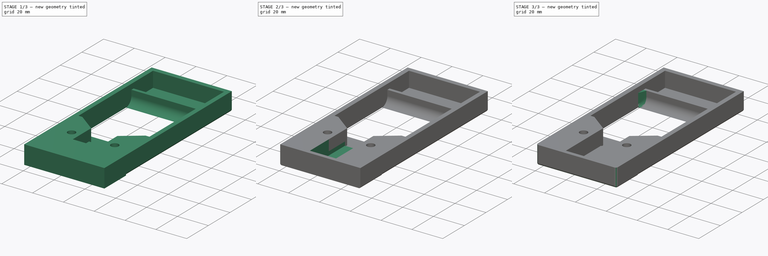
[diagram: build sequence overview — one tinted view per stage of 3, left to right]
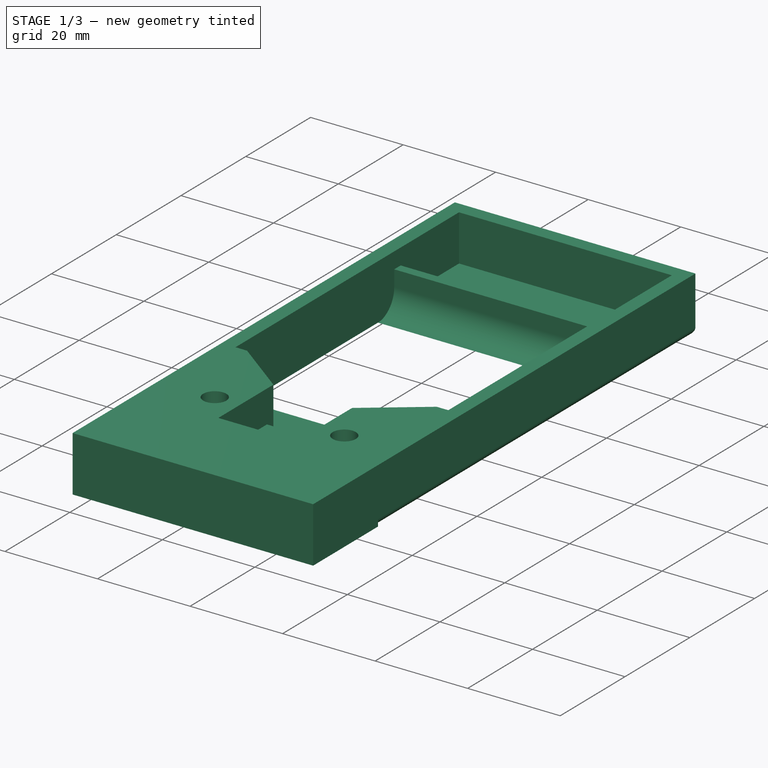
[diagram: stage 1 of 3 — iso view after this stage's code; geometry added in this stage tinted green]
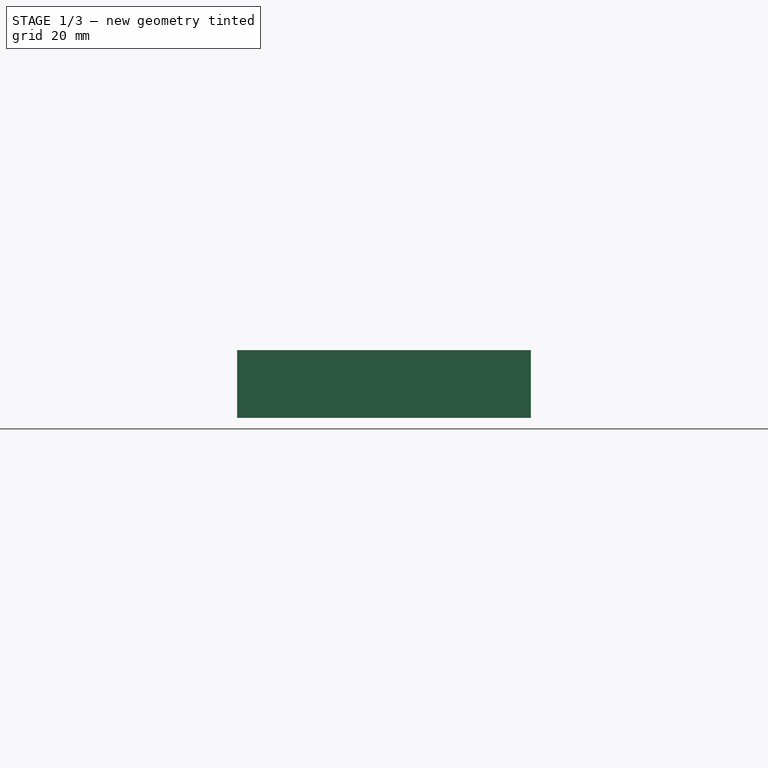
[diagram: stage 1 of 3 — front view after this stage's code; geometry added in this stage tinted green]
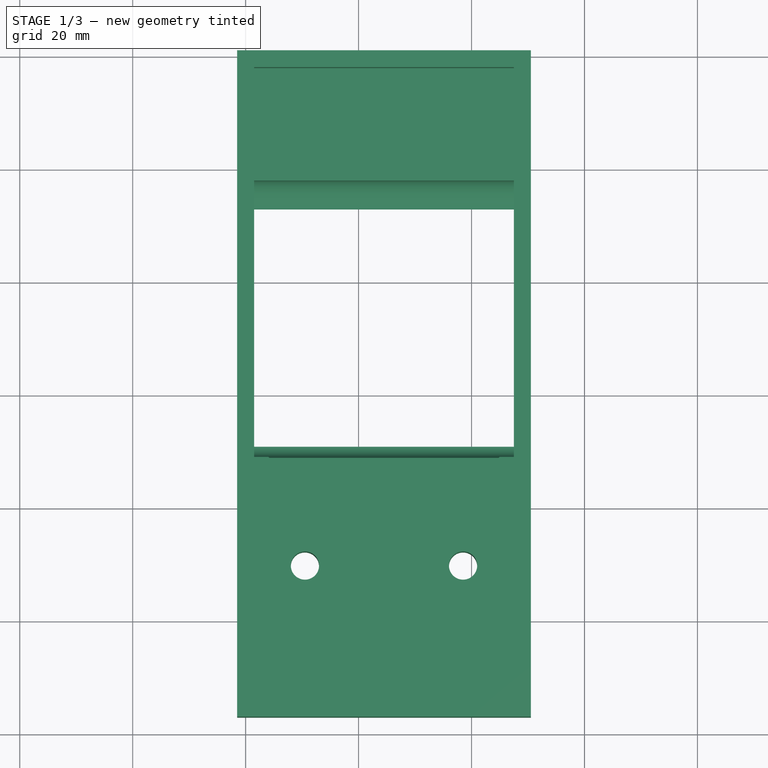
[diagram: stage 1 of 3 — top view after this stage's code; geometry added in this stage tinted green]
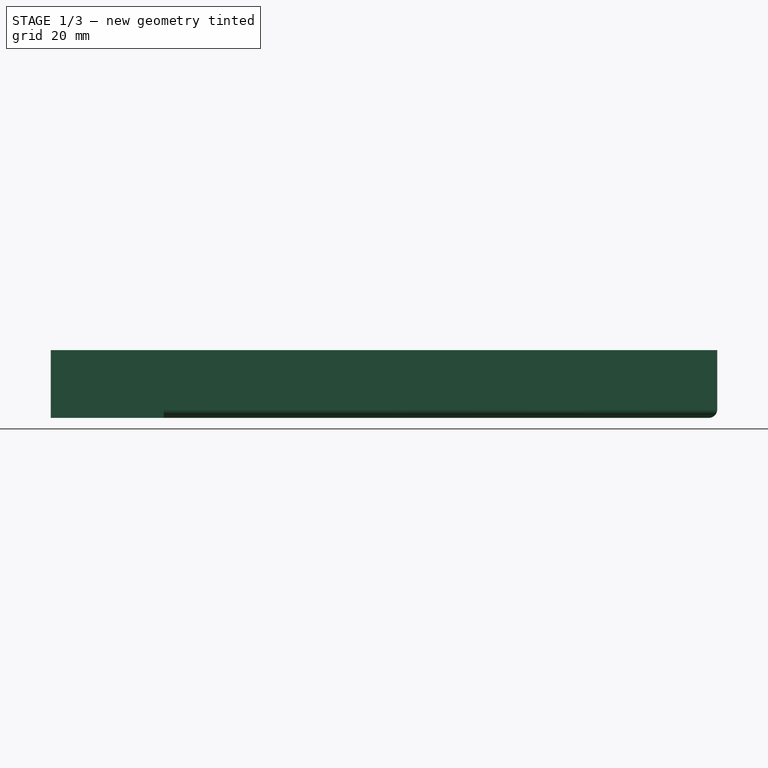
[diagram: stage 1 of 3 — right view after this stage's code; geometry added in this stage tinted green]
FCSTD DOCUMENT  (FreeCAD 0.16R6707 (Git))
Label: rq_optskin01_mold_a
License: All rights reserved
LicenseURL: http://en.wikipedia.org/wiki/All_rights_reserved
objects: Part::Feature×5, Sketcher::SketchObject×2, Part::Fillet×2, Part::Extrusion×1, Part::MultiFuse×1, PartDesign::Pocket×1, Part::Compound×1
note: 14 computed .brp shape members not serialized (recipe doc carries the construction recipe); baked Part::Feature solids carry a one-line shape summary decoded from their .brp

FEATURE [Sketcher::SketchObject] Sketch016
  Placement = pos=(0,0,12) rot=(0,0,1;0rad)
  sketch-geometry (4):
    g0: LineSegment StartX=-21.5 StartY=-17 StartZ=0 EndX=30.5 EndY=-17 EndZ=0
    g1: LineSegment StartX=30.5 StartY=-17 StartZ=0 EndX=30.5 EndY=-37 EndZ=0
    g2: LineSegment StartX=30.5 StartY=-37 StartZ=0 EndX=-21.5 EndY=-37 EndZ=0
    g3: LineSegment StartX=-21.5 StartY=-37 StartZ=0 EndX=-21.5 EndY=-17 EndZ=0
  constraints (8):
    c: Coincident(g0,g1)
    c: Coincident(g1,g2)
    c: Coincident(g2,g3)
    c: Coincident(g3,g0)
    c: Horizontal(g0)
    c: Horizontal(g2)
    c: Vertical(g1)
    c: Vertical(g3)
FEATURE [Part::Extrusion] Extrude003
  Base = -> Sketch016
  Dir = (0,0,-12)
  Solid = true
FEATURE [Part::Feature] bxgr_optskin02_mold_a_v3_1
  shape: bbox 52 x 102 x 12 mm, 45 faces (baked)
FEATURE [Part::Feature] bxgr_optskin02_mold_a_v3_1001
  Placement = pos=(-16.55,53,0) rot=(0,0,1;0rad)
  shape: bbox 2.01 x 5 x 8.5 mm, 8 faces (baked)
FEATURE [Part::Feature] bxgr_optskin02_mold_a_v3_1002
  Placement = pos=(25.5,53,0) rot=(0,0,1;0rad)
  shape: bbox 2.01 x 5 x 8.5 mm, 8 faces (baked)
FEATURE [Part::Feature] bxgr_optskin02_mold_a_v3_1003
  shape: bbox 2 x 46 x 2 mm, 3 faces, 0 solids (baked)
FEATURE [Part::Feature] bxgr_optskin02_mold_a_v3_1004
  shape: bbox 2 x 46 x 2 mm, 3 faces, 0 solids (baked)
FEATURE [Part::MultiFuse] Fusion
  Shapes = -> [bxgr_optskin02_mold_a_v3_1,Extrude003]
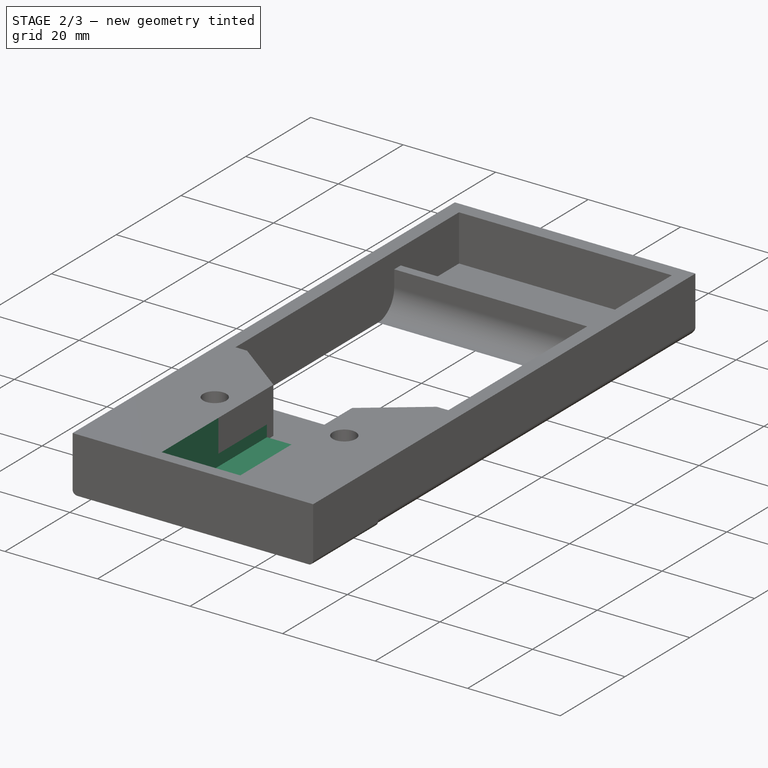
[diagram: stage 2 of 3 — iso view after this stage's code; geometry added in this stage tinted green]
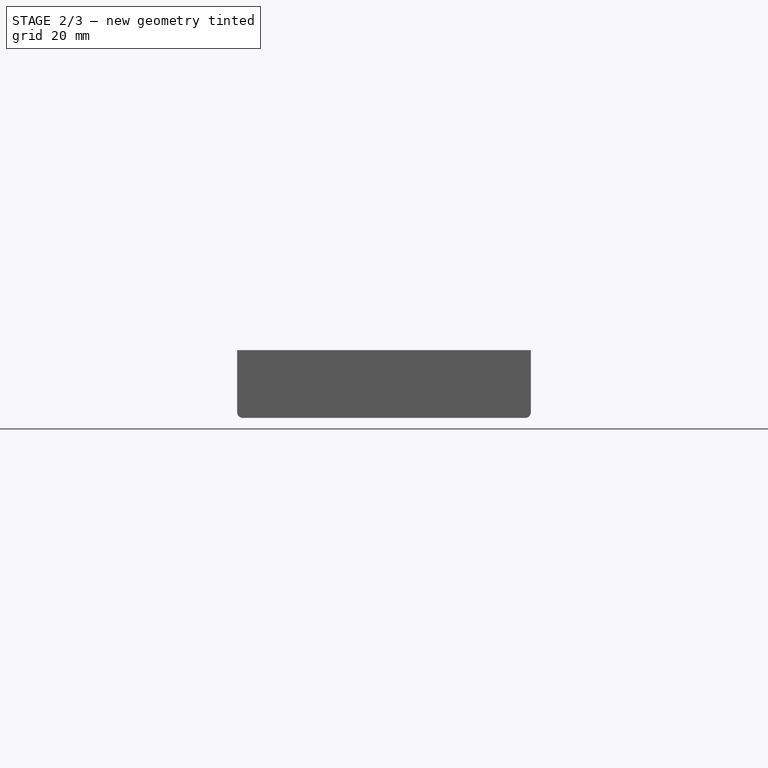
[diagram: stage 2 of 3 — front view after this stage's code; geometry added in this stage tinted green]
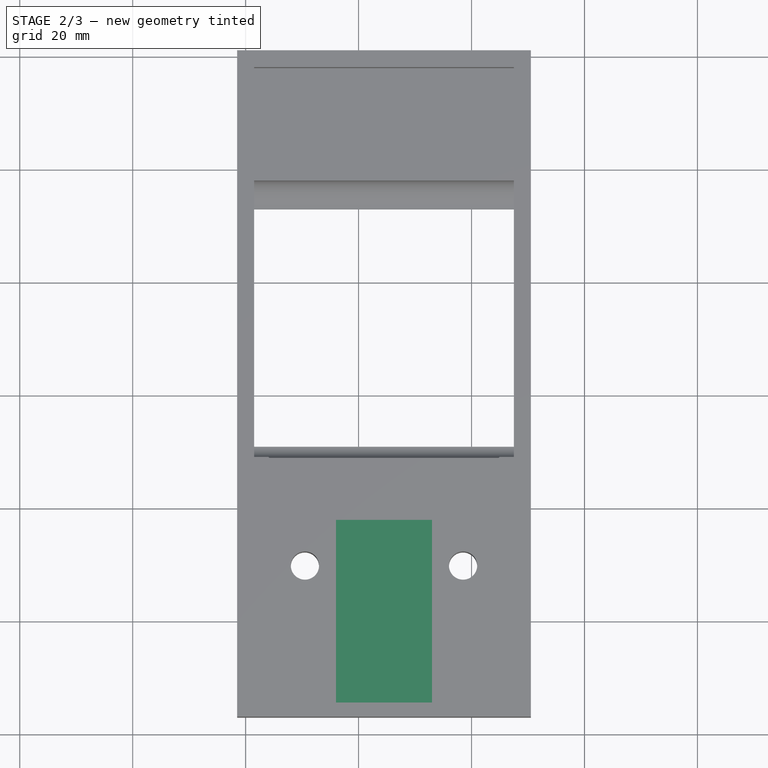
[diagram: stage 2 of 3 — top view after this stage's code; geometry added in this stage tinted green]
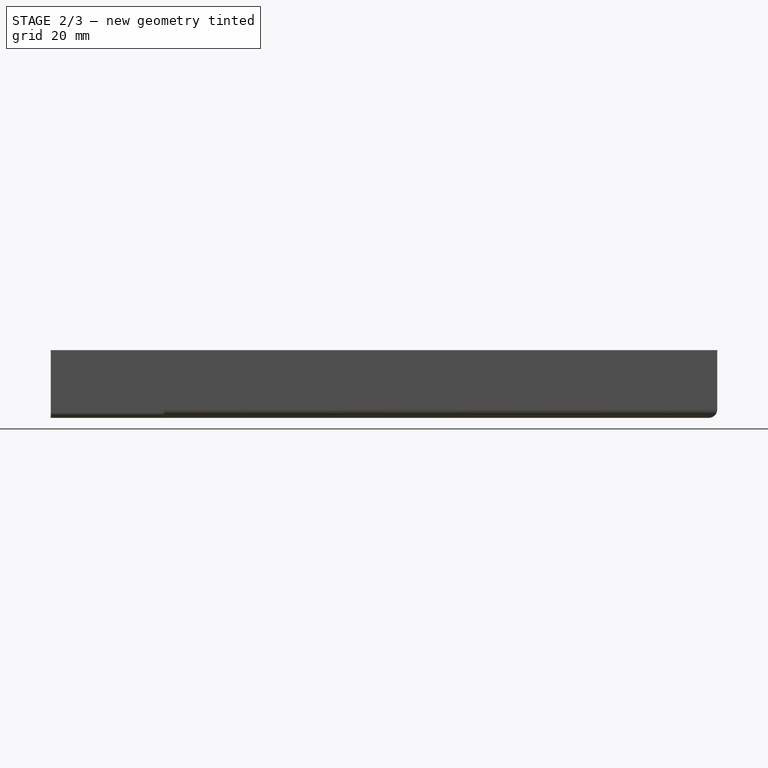
[diagram: stage 2 of 3 — right view after this stage's code; geometry added in this stage tinted green]
FEATURE [Sketcher::SketchObject] Sketch
  ExternalGeometry = -> [Fusion]
  Placement = pos=(0,0,12) rot=(0,0,1;0rad)
  Support = -> Fusion [Face34]
  sketch-geometry (4):
    g0: LineSegment StartX=-4 StartY=-2 StartZ=0 EndX=13 EndY=-2 EndZ=0
    g1: LineSegment StartX=13 StartY=-2 StartZ=0 EndX=13 EndY=-34.5 EndZ=0
    g2: LineSegment StartX=13 StartY=-34.5 StartZ=0 EndX=-4 EndY=-34.5 EndZ=0
    g3: LineSegment StartX=-4 StartY=-34.5 StartZ=0 EndX=-4 EndY=-2 EndZ=0
  constraints (11):
    c: Coincident(g0,g1)
    c: Coincident(g1,g2)
    c: Coincident(g2,g3)
    c: Coincident(g3,g0)
    c: Horizontal(g0)
    c: Horizontal(g2)
    c: Vertical(g1)
    c: Vertical(g3)
    c: Coincident(g0,g-3)
    c: Coincident(g0,g-3)
    c: DistanceY(g2,g0) = 32.5
FEATURE [PartDesign::Pocket] Pocket
  Length = 9.5
  Sketch = -> Sketch
  Type = 0
FEATURE [Part::Fillet] Fillet
  Base = -> Pocket
  Edges = 2 edges r=1: [Edge110,Edge138]
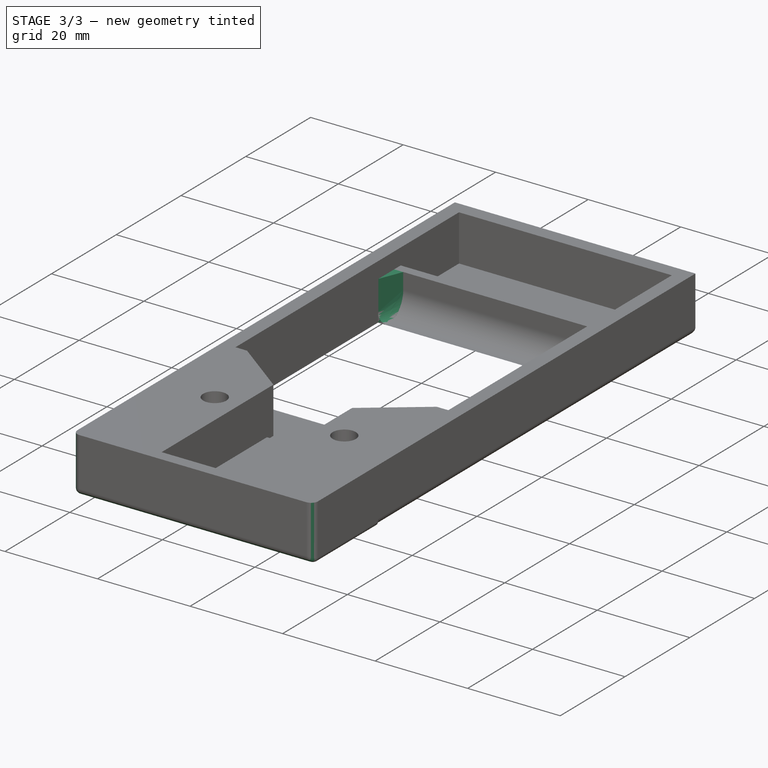
[diagram: stage 3 of 3 — iso view after this stage's code; geometry added in this stage tinted green]
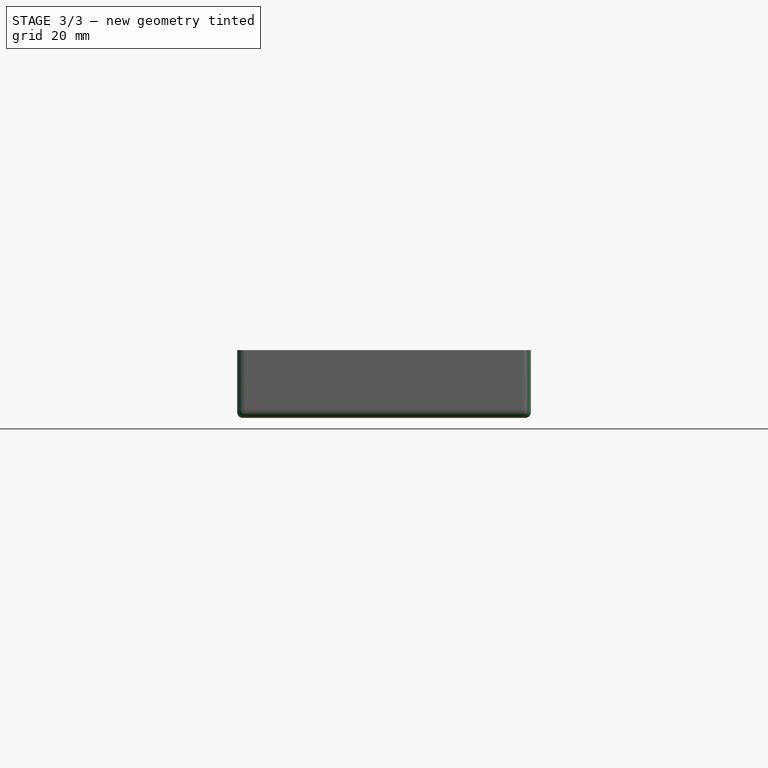
[diagram: stage 3 of 3 — front view after this stage's code; geometry added in this stage tinted green]
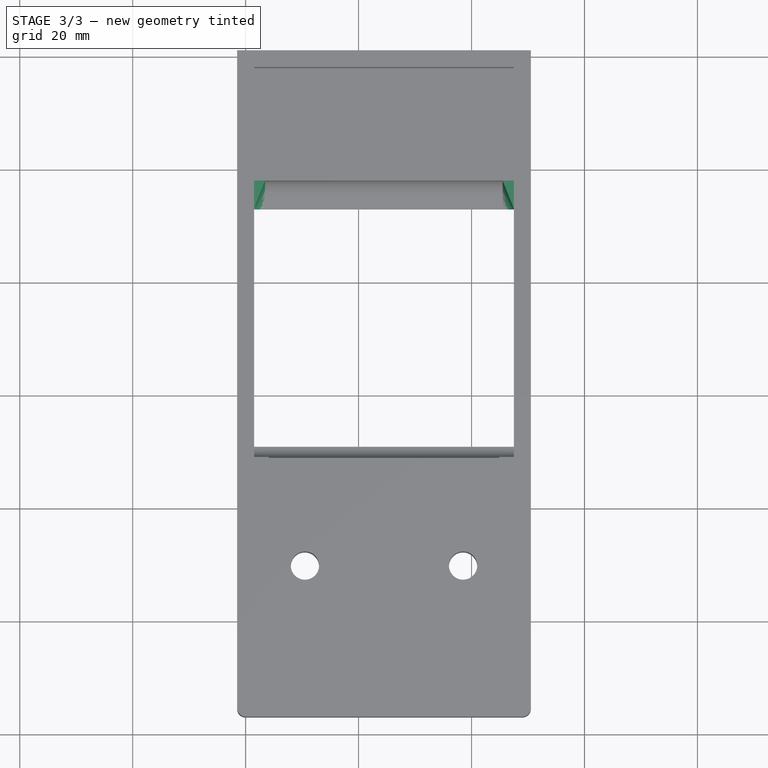
[diagram: stage 3 of 3 — top view after this stage's code; geometry added in this stage tinted green]
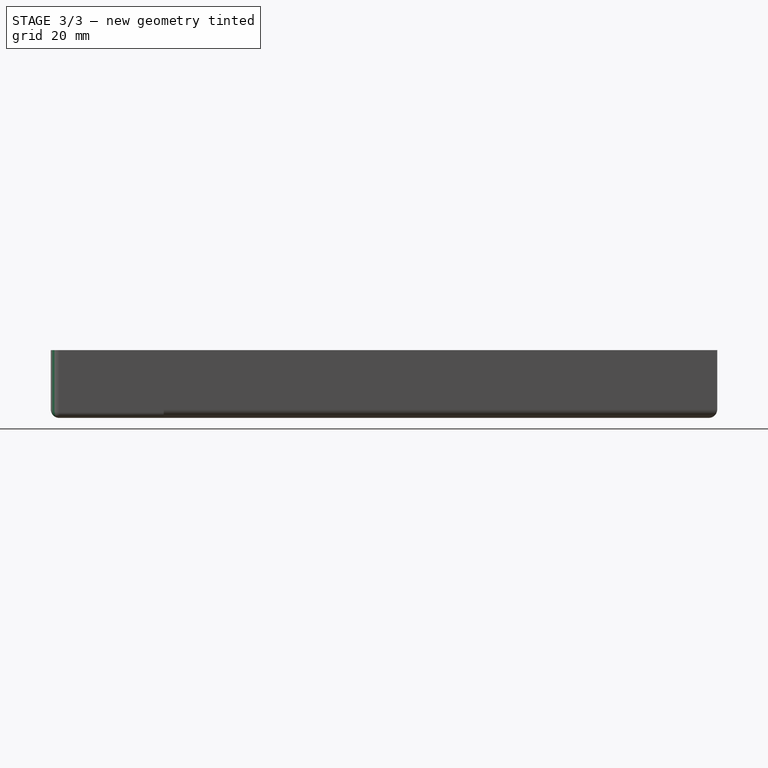
[diagram: stage 3 of 3 — right view after this stage's code; geometry added in this stage tinted green]
FEATURE [Part::Fillet] Fillet001
  Base = -> Fillet
  Edges = 1 edges r=1.5: [Edge7]
FEATURE [Part::Compound] Compound
  Links = -> [Fillet001,bxgr_optskin02_mold_a_v3_1004,bxgr_optskin02_mold_a_v3_1003,bxgr_optskin02_mold_a_v3_1002,bxgr_optskin02_mold_a_v3_1001]
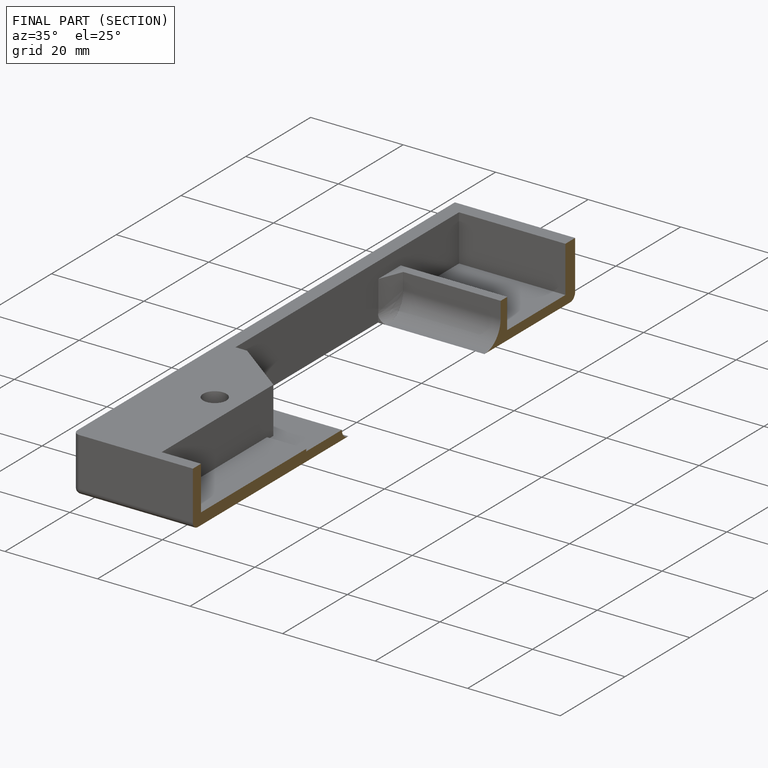
[diagram: finished part — half-section view (interior)]
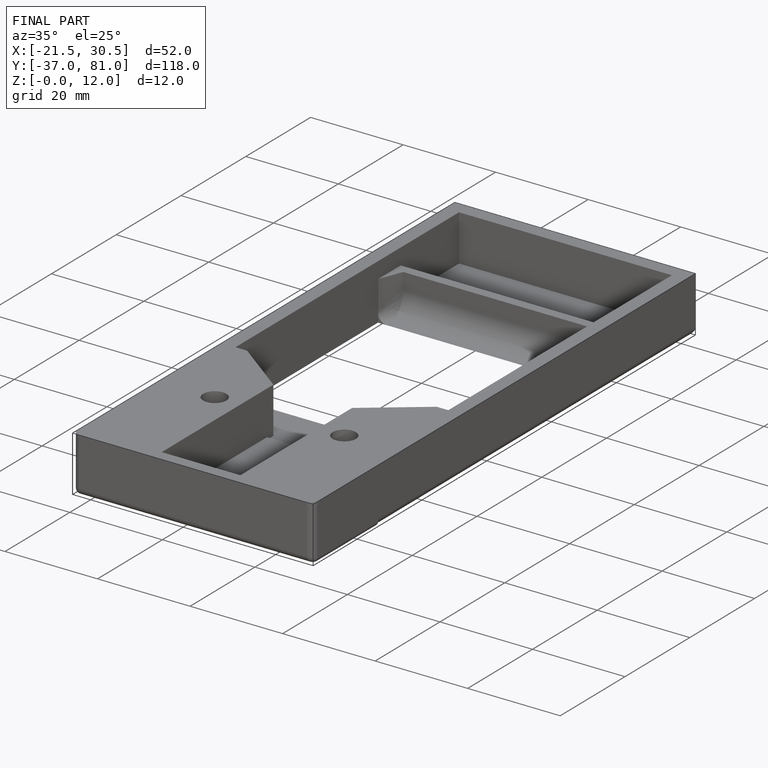
[diagram: finished part — iso view with bounding-box wireframe]
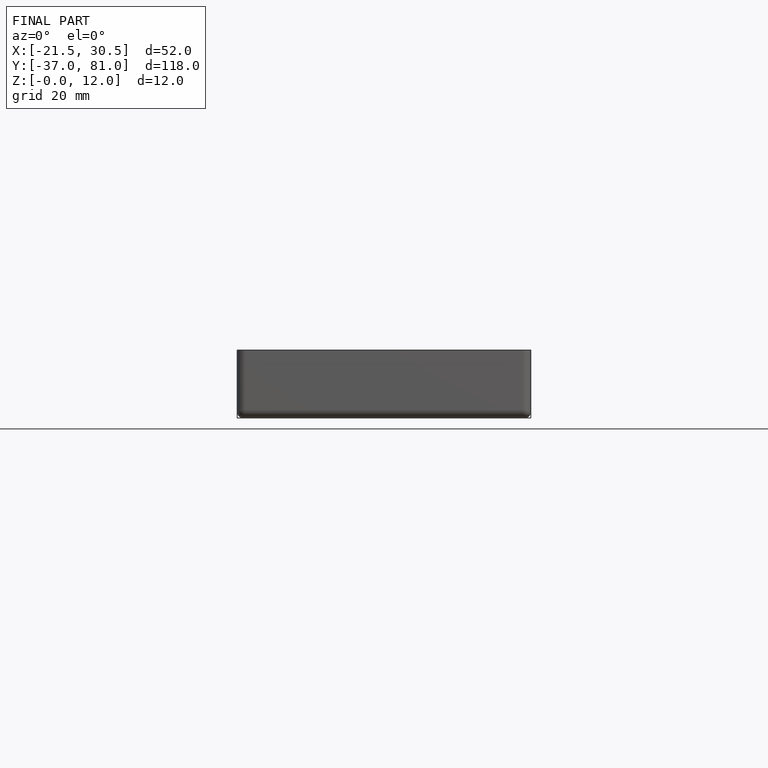
[diagram: finished part — front view with bounding-box wireframe]
